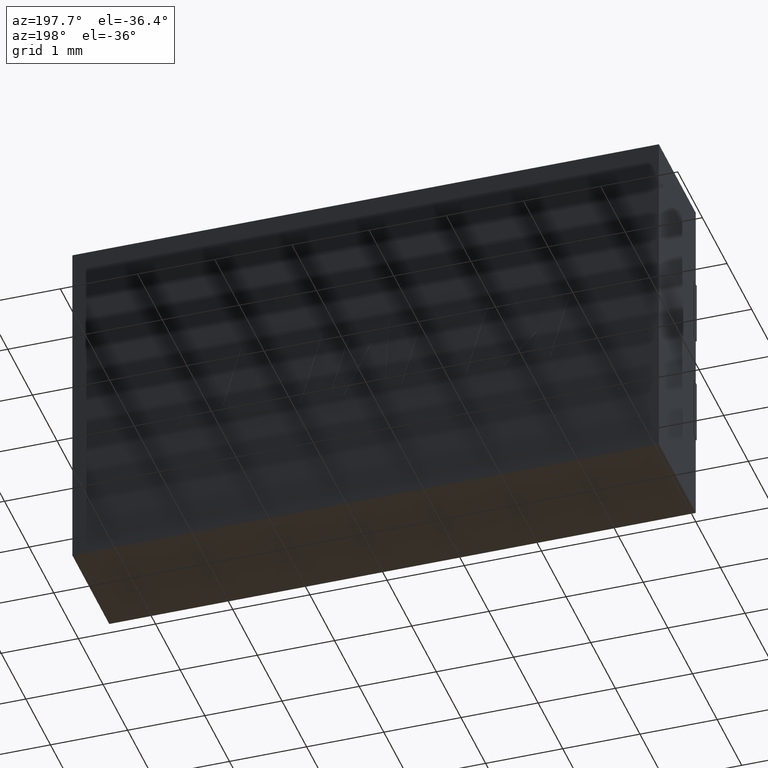
[diagram: clean part render]
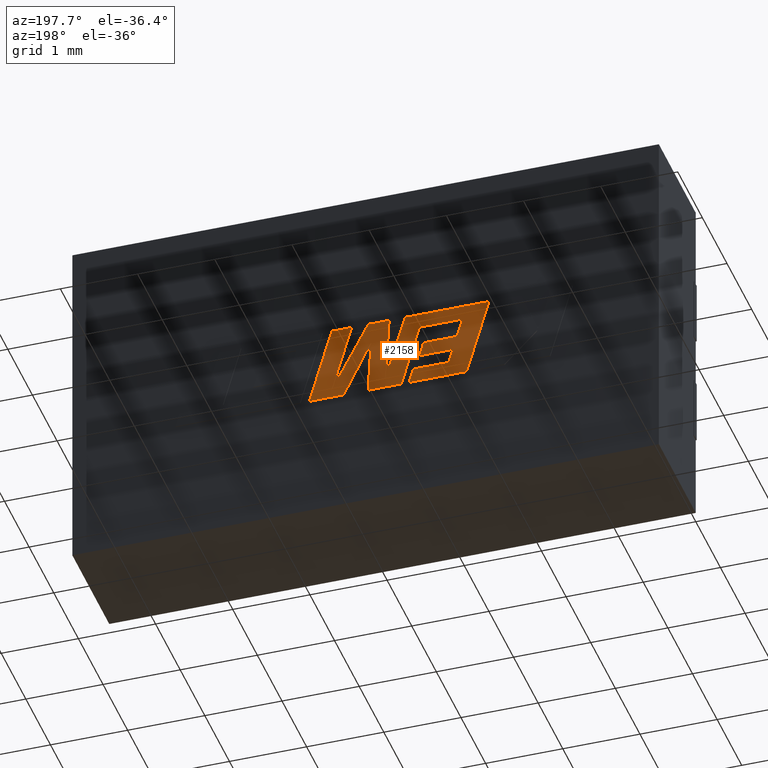
[diagram: same view with one face highlighted and labeled with its STEP entity id]
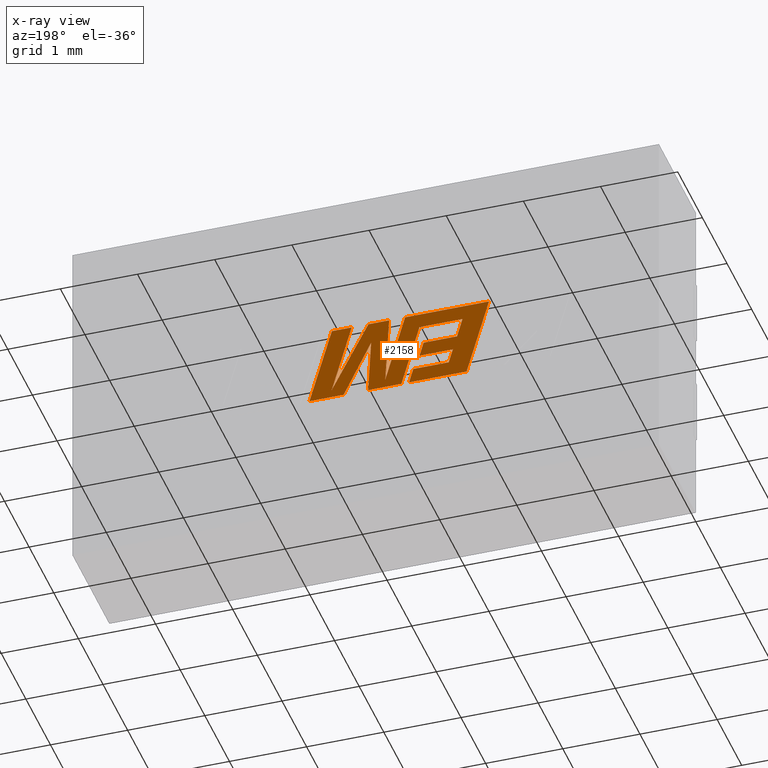
[diagram: x-ray of the same camera — body ghosted, the highlighted face saturated]
A machine part, auxiliary view. The second image highlights one B-rep face of the part: STEP entity #2158.
The next image is the same camera in x-ray: the body ghosted, the highlighted face saturated — about 0% of this face is hidden behind the body in this view.
In plain terms, the highlighted planar face has unit normal (0, -1, -0).
Its self-contained STEP definition (entity closure, byte-faithful):
#6 = LINE ( 'NONE', #1376, #2231 ) ;
#42 = LINE ( 'NONE', #2073, #2086 ) ;
#53 = CARTESIAN_POINT ( 'NONE',  ( 3.097895416768897903, 1.510000000000000009, -2.554760982396959701 ) ) ;
#59 = VERTEX_POINT ( 'NONE', #2024 ) ;
#89 = CARTESIAN_POINT ( 'NONE',  ( 3.542444615263578456, 1.510000000000000009, -2.823532510876776147 ) ) ;
#102 = CARTESIAN_POINT ( 'NONE',  ( 3.233565482614884523, 1.510000000000000009, -2.934144902229014473 ) ) ;
#140 = CARTESIAN_POINT ( 'NONE',  ( 4.523972882274345686, 1.510000000000000009, -2.934144902229014473 ) ) ;
#147 = EDGE_CURVE ( 'NONE', #859, #2710, #2574, .T. ) ;
#165 = EDGE_CURVE ( 'NONE', #1854, #59, #1624, .T. ) ;
#226 = LINE ( 'NONE', #2949, #1231 ) ;
#241 = DIRECTION ( 'NONE',  ( -1.000000000000000000, 0.000000000000000000, 0.000000000000000000 ) ) ;
#249 = DIRECTION ( 'NONE',  ( 0.2759782365590801589, 0.000000000000000000, -0.9611638845408936316 ) ) ;
#289 = CARTESIAN_POINT ( 'NONE',  ( 2.540661778654873526, 1.510000000000000009, -2.117856289540350989 ) ) ;
#313 = VERTEX_POINT ( 'NONE', #2136 ) ;
#324 = VERTEX_POINT ( 'NONE', #2644 ) ;
#349 = VECTOR ( 'NONE', #2484, 1000.000000000000000 ) ;
#358 = VERTEX_POINT ( 'NONE', #102 ) ;
#402 = CARTESIAN_POINT ( 'NONE',  ( 3.763418694440282319, 1.510000000000000009, -2.934144902229014473 ) ) ;
#418 = DIRECTION ( 'NONE',  ( 0.2793947940878308001, 0.000000000000000000, -0.9601763114327590554 ) ) ;
#460 = CARTESIAN_POINT ( 'NONE',  ( 4.523972882274345686, 1.510000000000000009, -2.934144902229014473 ) ) ;
#467 = VERTEX_POINT ( 'NONE', #1669 ) ;
#471 = LINE ( 'NONE', #1392, #1995 ) ;
#504 = DIRECTION ( 'NONE',  ( -0.2762517575166148487, 0.000000000000000000, 0.9610853065513910165 ) ) ;
#543 = DIRECTION ( 'NONE',  ( -0.4443210308329209046, 0.000000000000000000, 0.8958676361826956036 ) ) ;
#555 = CARTESIAN_POINT ( 'NONE',  ( 3.099483169106719060, 1.510000000000000009, -2.117856289540350989 ) ) ;
#567 = EDGE_CURVE ( 'NONE', #467, #1854, #731, .T. ) ;
#569 = LINE ( 'NONE', #2397, #1463 ) ;
#590 = VERTEX_POINT ( 'NONE', #1474 ) ;
#624 = CARTESIAN_POINT ( 'NONE',  ( 2.198749426292037956, 1.510000000000000009, -1.926069293473886113 ) ) ;
#627 = DIRECTION ( 'NONE',  ( 0.000000000000000000, 0.000000000000000000, -1.000000000000000000 ) ) ;
#636 = LINE ( 'NONE', #2662, #2426 ) ;
#711 = CARTESIAN_POINT ( 'NONE',  ( 3.763418694440282319, 1.510000000000000009, -2.934144902229014473 ) ) ;
#716 = CARTESIAN_POINT ( 'NONE',  ( 2.612049330811776482, 1.510000000000000009, -2.368402382848868282 ) ) ;
#731 = LINE ( 'NONE', #979, #2127 ) ;
#740 = CARTESIAN_POINT ( 'NONE',  ( 3.099483169106719060, 1.510000000000000009, -2.117856289540350989 ) ) ;
#808 = VERTEX_POINT ( 'NONE', #933 ) ;
#809 = CARTESIAN_POINT ( 'NONE',  ( 3.284756701579853111, 1.510000000000000009, -1.926069293473886113 ) ) ;
#847 = VECTOR ( 'NONE', #1005, 1000.000000000000000 ) ;
#850 = VERTEX_POINT ( 'NONE', #289 ) ;
#854 = VERTEX_POINT ( 'NONE', #1187 ) ;
#859 = VERTEX_POINT ( 'NONE', #2750 ) ;
#873 = VERTEX_POINT ( 'NONE', #460 ) ;
#892 = DIRECTION ( 'NONE',  ( 0.000000000000000000, -1.000000000000000000, -0.000000000000000000 ) ) ;
#933 = CARTESIAN_POINT ( 'NONE',  ( 2.665217578115937069, 1.510000000000000009, -2.554760982396959701 ) ) ;
#957 = ORIENTED_EDGE ( 'NONE', *, *, #2937, .T. ) ;
#979 = CARTESIAN_POINT ( 'NONE',  ( 4.236939136717459142, 1.510000000000000009, -2.827854385006927984 ) ) ;
#985 = EDGE_CURVE ( 'NONE', #2218, #1219, #569, .T. ) ;
#991 = VECTOR ( 'NONE', #1301, 1000.000000000000227 ) ;
#1005 = DIRECTION ( 'NONE',  ( -1.000000000000000000, 0.000000000000000000, 0.000000000000000000 ) ) ;
#1022 = EDGE_CURVE ( 'NONE', #2699, #2241, #1441, .T. ) ;
#1043 = VECTOR ( 'NONE', #2416, 1000.000000000000114 ) ;
#1045 = VERTEX_POINT ( 'NONE', #1607 ) ;
#1058 = EDGE_CURVE ( 'NONE', #850, #590, #6, .T. ) ;
#1112 = ORIENTED_EDGE ( 'NONE', *, *, #1022, .T. ) ;
#1145 = CARTESIAN_POINT ( 'NONE',  ( 3.044665866285598099, 1.510000000000000009, -2.368402382848868282 ) ) ;
#1150 = ORIENTED_EDGE ( 'NONE', *, *, #2377, .T. ) ;
#1151 = LINE ( 'NONE', #716, #2478 ) ;
#1166 = DIRECTION ( 'NONE',  ( 1.000000000000000000, 0.000000000000000000, 0.000000000000000000 ) ) ;
#1179 = VECTOR ( 'NONE', #418, 1000.000000000000000 ) ;
#1187 = CARTESIAN_POINT ( 'NONE',  ( 3.724650989120672051, 1.510000000000000009, -2.213962735151857153 ) ) ;
#1201 = CARTESIAN_POINT ( 'NONE',  ( 3.760883168476724325, 1.510000000000000009, -1.926069293473886113 ) ) ;
#1214 = ORIENTED_EDGE ( 'NONE', *, *, #985, .T. ) ;
#1219 = VERTEX_POINT ( 'NONE', #624 ) ;
#1231 = VECTOR ( 'NONE', #1978, 1000.000000000000114 ) ;
#1237 = DIRECTION ( 'NONE',  ( 1.000000000000000000, 0.000000000000000000, 0.000000000000000000 ) ) ;
#1271 = ORIENTED_EDGE ( 'NONE', *, *, #2582, .T. ) ;
#1273 = LINE ( 'NONE', #140, #847 ) ;
#1275 = LINE ( 'NONE', #2190, #2088 ) ;
#1280 = EDGE_LOOP ( 'NONE', ( #1150, #1744, #2257, #2203, #1271, #2549, #1738, #2394, #1687, #957, #1315, #1777, #2443, #1874, #1214, #2262, #1826, #1322, #1112, #1793, #1792, #1778, #2301 ) ) ;
#1301 = DIRECTION ( 'NONE',  ( -0.05596501978068205152, 0.000000000000000000, 0.9984327301130245802 ) ) ;
#1304 = DIRECTION ( 'NONE',  ( 0.2763139702539115783, 0.000000000000000000, -0.9610674221107072812 ) ) ;
#1315 = ORIENTED_EDGE ( 'NONE', *, *, #2163, .T. ) ;
#1316 = CARTESIAN_POINT ( 'NONE',  ( 3.492139226428116583, 1.510000000000000009, -1.926069293473886113 ) ) ;
#1321 = EDGE_CURVE ( 'NONE', #854, #1678, #2889, .T. ) ;
#1322 = ORIENTED_EDGE ( 'NONE', *, *, #2688, .T. ) ;
#1351 = EDGE_CURVE ( 'NONE', #358, #2218, #2628, .T. ) ;
#1376 = CARTESIAN_POINT ( 'NONE',  ( 2.540661778654873526, 1.510000000000000009, -2.117856289540350989 ) ) ;
#1392 = CARTESIAN_POINT ( 'NONE',  ( 3.334114957106054877, 1.510000000000000009, -2.934144902229014473 ) ) ;
#1441 = LINE ( 'NONE', #2129, #2746 ) ;
#1463 = VECTOR ( 'NONE', #2839, 1000.000000000000114 ) ;
#1467 = AXIS2_PLACEMENT_3D ( 'NONE', #2031, #892, #627 ) ;
#1474 = CARTESIAN_POINT ( 'NONE',  ( 2.612049330811776482, 1.510000000000000009, -2.368402382848868282 ) ) ;
#1475 = CARTESIAN_POINT ( 'NONE',  ( 3.724650989120672051, 1.510000000000000009, -2.213962735151857153 ) ) ;
#1498 = CARTESIAN_POINT ( 'NONE',  ( 3.233565482614884523, 1.510000000000000009, -2.934144902229014473 ) ) ;
#1574 = LINE ( 'NONE', #2905, #2801 ) ;
#1578 = VECTOR ( 'NONE', #2087, 1000.000000000000114 ) ;
#1607 = CARTESIAN_POINT ( 'NONE',  ( 2.719777407587432805, 1.510000000000000009, -2.742262886236558117 ) ) ;
#1624 = LINE ( 'NONE', #2070, #2819 ) ;
#1651 = DIRECTION ( 'NONE',  ( -0.2760118818968562149, 0.000000000000000000, 0.9611542233438689076 ) ) ;
#1663 = LINE ( 'NONE', #555, #2327 ) ;
#1669 = CARTESIAN_POINT ( 'NONE',  ( 4.236939136717459142, 1.510000000000000009, -2.827854385006927984 ) ) ;
#1677 = EDGE_CURVE ( 'NONE', #2241, #467, #226, .T. ) ;
#1678 = VERTEX_POINT ( 'NONE', #402 ) ;
#1687 = ORIENTED_EDGE ( 'NONE', *, *, #147, .T. ) ;
#1713 = EDGE_CURVE ( 'NONE', #1045, #313, #1574, .T. ) ;
#1738 = ORIENTED_EDGE ( 'NONE', *, *, #1058, .T. ) ;
#1744 = ORIENTED_EDGE ( 'NONE', *, *, #1873, .T. ) ;
#1754 = VECTOR ( 'NONE', #2105, 1000.000000000000000 ) ;
#1768 = CARTESIAN_POINT ( 'NONE',  ( 2.665217578115937069, 1.510000000000000009, -2.554760982396959701 ) ) ;
#1777 = ORIENTED_EDGE ( 'NONE', *, *, #1713, .T. ) ;
#1778 = ORIENTED_EDGE ( 'NONE', *, *, #165, .T. ) ;
#1792 = ORIENTED_EDGE ( 'NONE', *, *, #567, .T. ) ;
#1793 = ORIENTED_EDGE ( 'NONE', *, *, #1677, .T. ) ;
#1797 = LINE ( 'NONE', #1768, #1179 ) ;
#1826 = ORIENTED_EDGE ( 'NONE', *, *, #2631, .T. ) ;
#1840 = CARTESIAN_POINT ( 'NONE',  ( 3.334114957106054877, 1.510000000000000009, -2.934144902229014473 ) ) ;
#1854 = VERTEX_POINT ( 'NONE', #1899 ) ;
#1863 = DIRECTION ( 'NONE',  ( 0.2732148821745872258, 0.000000000000000000, -0.9619530280415600210 ) ) ;
#1873 = EDGE_CURVE ( 'NONE', #2074, #854, #1275, .T. ) ;
#1874 = ORIENTED_EDGE ( 'NONE', *, *, #1351, .T. ) ;
#1876 = LINE ( 'NONE', #2788, #2803 ) ;
#1899 = CARTESIAN_POINT ( 'NONE',  ( 3.977976116907146586, 1.510000000000000009, -1.926069293473886113 ) ) ;
#1912 = VERTEX_POINT ( 'NONE', #1840 ) ;
#1978 = DIRECTION ( 'NONE',  ( 0.4668459304955208111, 0.000000000000000000, -0.8843386665637612554 ) ) ;
#1995 = VECTOR ( 'NONE', #504, 1000.000000000000227 ) ;
#2010 = VERTEX_POINT ( 'NONE', #740 ) ;
#2012 = VECTOR ( 'NONE', #241, 1000.000000000000000 ) ;
#2024 = CARTESIAN_POINT ( 'NONE',  ( 4.234143711746940042, 1.510000000000000009, -1.926069293473886113 ) ) ;
#2031 = CARTESIAN_POINT ( 'NONE',  ( 0.000000000000000000, 1.510000000000000009, 0.000000000000000000 ) ) ;
#2057 = EDGE_CURVE ( 'NONE', #59, #873, #636, .T. ) ;
#2070 = CARTESIAN_POINT ( 'NONE',  ( 3.977976116907146586, 1.510000000000000009, -1.926069293473886113 ) ) ;
#2073 = CARTESIAN_POINT ( 'NONE',  ( 3.179066956322459170, 1.510000000000000009, -2.742262886236558117 ) ) ;
#2074 = VERTEX_POINT ( 'NONE', #2927 ) ;
#2086 = VECTOR ( 'NONE', #1863, 1000.000000000000114 ) ;
#2087 = DIRECTION ( 'NONE',  ( 0.2746459304916898936, 0.000000000000000000, -0.9615454294334478957 ) ) ;
#2088 = VECTOR ( 'NONE', #543, 1000.000000000000000 ) ;
#2089 = LINE ( 'NONE', #711, #1754 ) ;
#2105 = DIRECTION ( 'NONE',  ( -1.000000000000000000, 0.000000000000000000, 0.000000000000000000 ) ) ;
#2127 = VECTOR ( 'NONE', #1651, 1000.000000000000227 ) ;
#2129 = CARTESIAN_POINT ( 'NONE',  ( 3.492139226428116583, 1.510000000000000009, -1.926069293473886113 ) ) ;
#2136 = CARTESIAN_POINT ( 'NONE',  ( 3.179066956322459170, 1.510000000000000009, -2.742262886236558117 ) ) ;
#2158 = ADVANCED_FACE ( 'NONE', ( #2221 ), #2240, .F. ) ;
#2163 = EDGE_CURVE ( 'NONE', #808, #1045, #1797, .T. ) ;
#2178 = DIRECTION ( 'NONE',  ( -1.000000000000000000, 0.000000000000000000, 0.000000000000000000 ) ) ;
#2190 = CARTESIAN_POINT ( 'NONE',  ( 4.081837776475442325, 1.510000000000000009, -2.934144902229014473 ) ) ;
#2203 = ORIENTED_EDGE ( 'NONE', *, *, #2530, .T. ) ;
#2209 = CARTESIAN_POINT ( 'NONE',  ( 2.198749426292037956, 1.510000000000000009, -1.926069293473886113 ) ) ;
#2218 = VERTEX_POINT ( 'NONE', #2538 ) ;
#2221 = FACE_OUTER_BOUND ( 'NONE', #1280, .T. ) ;
#2231 = VECTOR ( 'NONE', #2882, 1000.000000000000114 ) ;
#2240 = PLANE ( 'NONE',  #1467 ) ;
#2241 = VERTEX_POINT ( 'NONE', #1201 ) ;
#2246 = LINE ( 'NONE', #2209, #349 ) ;
#2251 = EDGE_CURVE ( 'NONE', #590, #859, #1151, .T. ) ;
#2253 = DIRECTION ( 'NONE',  ( 1.000000000000000000, 0.000000000000000000, 0.000000000000000000 ) ) ;
#2257 = ORIENTED_EDGE ( 'NONE', *, *, #1321, .T. ) ;
#2262 = ORIENTED_EDGE ( 'NONE', *, *, #2827, .T. ) ;
#2301 = ORIENTED_EDGE ( 'NONE', *, *, #2057, .T. ) ;
#2327 = VECTOR ( 'NONE', #2594, 1000.000000000000000 ) ;
#2360 = EDGE_CURVE ( 'NONE', #2010, #850, #1663, .T. ) ;
#2377 = EDGE_CURVE ( 'NONE', #873, #2074, #1273, .T. ) ;
#2394 = ORIENTED_EDGE ( 'NONE', *, *, #2251, .T. ) ;
#2397 = CARTESIAN_POINT ( 'NONE',  ( 2.488833005822573607, 1.510000000000000009, -2.934144902229014473 ) ) ;
#2416 = DIRECTION ( 'NONE',  ( 0.05375259206908325482, 0.000000000000000000, -0.9985542843760947251 ) ) ;
#2423 = VERTEX_POINT ( 'NONE', #809 ) ;
#2426 = VECTOR ( 'NONE', #1304, 1000.000000000000227 ) ;
#2443 = ORIENTED_EDGE ( 'NONE', *, *, #2546, .T. ) ;
#2478 = VECTOR ( 'NONE', #1166, 1000.000000000000000 ) ;
#2483 = VECTOR ( 'NONE', #2178, 1000.000000000000000 ) ;
#2484 = DIRECTION ( 'NONE',  ( 1.000000000000000000, 0.000000000000000000, 0.000000000000000000 ) ) ;
#2530 = EDGE_CURVE ( 'NONE', #1678, #1912, #2089, .T. ) ;
#2538 = CARTESIAN_POINT ( 'NONE',  ( 2.488833005822573607, 1.510000000000000009, -2.934144902229014473 ) ) ;
#2541 = LINE ( 'NONE', #53, #2012 ) ;
#2546 = EDGE_CURVE ( 'NONE', #313, #358, #42, .T. ) ;
#2549 = ORIENTED_EDGE ( 'NONE', *, *, #2360, .T. ) ;
#2574 = LINE ( 'NONE', #1145, #1578 ) ;
#2582 = EDGE_CURVE ( 'NONE', #1912, #2010, #471, .T. ) ;
#2594 = DIRECTION ( 'NONE',  ( -1.000000000000000000, 0.000000000000000000, 0.000000000000000000 ) ) ;
#2628 = LINE ( 'NONE', #1498, #2483 ) ;
#2631 = EDGE_CURVE ( 'NONE', #2423, #324, #1876, .T. ) ;
#2644 = CARTESIAN_POINT ( 'NONE',  ( 3.542444615263578456, 1.510000000000000009, -2.823532510876776147 ) ) ;
#2659 = LINE ( 'NONE', #89, #991 ) ;
#2662 = CARTESIAN_POINT ( 'NONE',  ( 4.234143711746940042, 1.510000000000000009, -1.926069293473886113 ) ) ;
#2688 = EDGE_CURVE ( 'NONE', #324, #2699, #2659, .T. ) ;
#2699 = VERTEX_POINT ( 'NONE', #1316 ) ;
#2710 = VERTEX_POINT ( 'NONE', #2894 ) ;
#2741 = DIRECTION ( 'NONE',  ( 1.000000000000000000, 0.000000000000000000, 0.000000000000000000 ) ) ;
#2746 = VECTOR ( 'NONE', #1237, 1000.000000000000000 ) ;
#2750 = CARTESIAN_POINT ( 'NONE',  ( 3.044665866285598099, 1.510000000000000009, -2.368402382848868282 ) ) ;
#2788 = CARTESIAN_POINT ( 'NONE',  ( 3.284756701579853111, 1.510000000000000009, -1.926069293473886113 ) ) ;
#2801 = VECTOR ( 'NONE', #2253, 1000.000000000000000 ) ;
#2803 = VECTOR ( 'NONE', #249, 1000.000000000000114 ) ;
#2819 = VECTOR ( 'NONE', #2741, 1000.000000000000000 ) ;
#2827 = EDGE_CURVE ( 'NONE', #1219, #2423, #2246, .T. ) ;
#2839 = DIRECTION ( 'NONE',  ( -0.2765379750249958302, 0.000000000000000000, 0.9610029908221278117 ) ) ;
#2882 = DIRECTION ( 'NONE',  ( 0.2740217765954071072, 0.000000000000000000, -0.9617234872620594732 ) ) ;
#2889 = LINE ( 'NONE', #1475, #1043 ) ;
#2894 = CARTESIAN_POINT ( 'NONE',  ( 3.097895416768897903, 1.510000000000000009, -2.554760982396959701 ) ) ;
#2905 = CARTESIAN_POINT ( 'NONE',  ( 2.719777407587432805, 1.510000000000000009, -2.742262886236558117 ) ) ;
#2927 = CARTESIAN_POINT ( 'NONE',  ( 4.081837776475442325, 1.510000000000000009, -2.934144902229014473 ) ) ;
#2937 = EDGE_CURVE ( 'NONE', #2710, #808, #2541, .T. ) ;
#2949 = CARTESIAN_POINT ( 'NONE',  ( 3.760883168476724325, 1.510000000000000009, -1.926069293473886113 ) ) ;